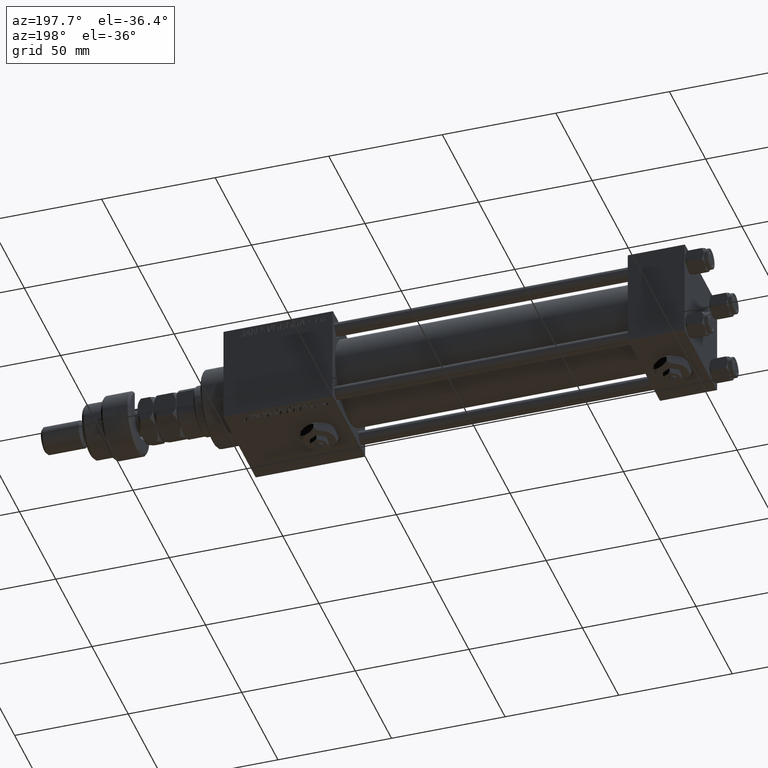
[diagram: clean part render]
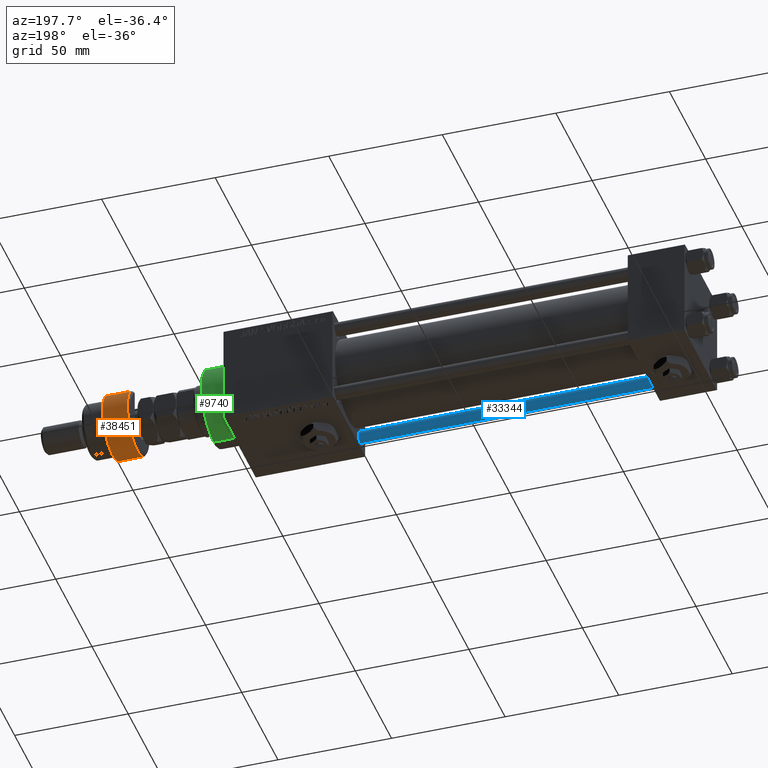
[diagram: same view with three faces highlighted in distinct colors, each labeled with its STEP entity id]
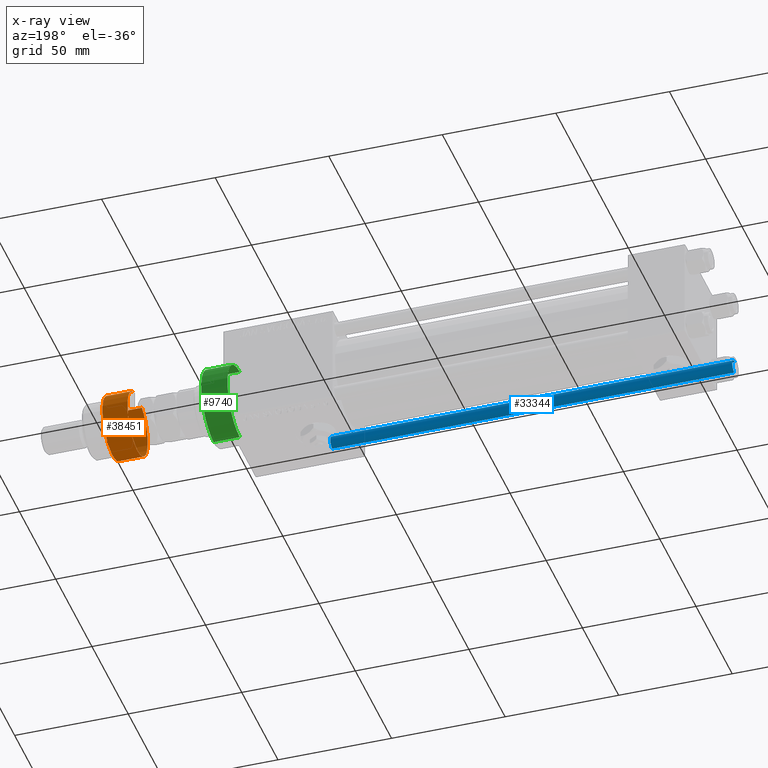
[diagram: x-ray of the same camera — body ghosted, the three highlighted faces saturated]
A machine part, auxiliary view with three faces highlighted in distinct colors.
The next image is the same camera in x-ray (body ghosted, the three faces saturated) — at least one of them is partly hidden behind the body in this view.
Their STEP definitions:

[orange] entity #38451 — the highlighted cylindrical surface (edge-blend (fillet) strip) has radius 14 mm, axis along (-1, -0, 0).
#2520 = VECTOR ( 'NONE', #7128, 1000.000000000000000 ) ;
#2724 = CARTESIAN_POINT ( 'NONE',  ( -12.64911064067351809, 6.000000000000000000, 1.000000000000021760 ) ) ;
#3640 = VERTEX_POINT ( 'NONE', #14206 ) ;
#7077 = CIRCLE ( 'NONE', #16015, 14.00000000000000000 ) ;
#7128 = DIRECTION ( 'NONE',  ( -0.000000000000000000, -0.000000000000000000, -1.000000000000000000 ) ) ;
#8043 = LINE ( 'NONE', #45714, #35758 ) ;
#8958 = EDGE_CURVE ( 'NONE', #35920, #3640, #49226, .T. ) ;
#10925 = CARTESIAN_POINT ( 'NONE',  ( -12.64911064067351809, -5.999999999999999112, 12.00000000000002842 ) ) ;
#11792 = AXIS2_PLACEMENT_3D ( 'NONE', #37243, #33610, #42250 ) ;
#12643 = DIRECTION ( 'NONE',  ( -1.000000000000000000, 0.000000000000000000, 0.000000000000000000 ) ) ;
#13092 = ORIENTED_EDGE ( 'NONE', *, *, #50314, .T. ) ;
#13327 = DIRECTION ( 'NONE',  ( 1.000000000000000000, 0.000000000000000000, 0.000000000000000000 ) ) ;
#14117 = AXIS2_PLACEMENT_3D ( 'NONE', #40092, #14712, #40377 ) ;
#14206 = CARTESIAN_POINT ( 'NONE',  ( 14.00000000000000000, 0.000000000000000000, 1.000000000000018208 ) ) ;
#14712 = DIRECTION ( 'NONE',  ( -0.000000000000000000, -0.000000000000000000, 1.000000000000000000 ) ) ;
#16015 = AXIS2_PLACEMENT_3D ( 'NONE', #30098, #47098, #13327 ) ;
#16847 = FACE_OUTER_BOUND ( 'NONE', #54822, .T. ) ;
#17730 = CIRCLE ( 'NONE', #14117, 14.00000000000000000 ) ;
#18190 = ORIENTED_EDGE ( 'NONE', *, *, #45269, .T. ) ;
#20819 = LINE ( 'NONE', #37817, #2520 ) ;
#22794 = EDGE_CURVE ( 'NONE', #55028, #25424, #20819, .T. ) ;
#23086 = ORIENTED_EDGE ( 'NONE', *, *, #22794, .F. ) ;
#23212 = ORIENTED_EDGE ( 'NONE', *, *, #8958, .T. ) ;
#25424 = VERTEX_POINT ( 'NONE', #2724 ) ;
#29673 = ORIENTED_EDGE ( 'NONE', *, *, #31537, .T. ) ;
#30098 = CARTESIAN_POINT ( 'NONE',  ( 0.000000000000000000, 0.000000000000000000, 12.00000000000002842 ) ) ;
#31537 = EDGE_CURVE ( 'NONE', #53939, #35920, #8043, .T. ) ;
#33610 = DIRECTION ( 'NONE',  ( -0.000000000000000000, -0.000000000000000000, 1.000000000000000000 ) ) ;
#33841 = CYLINDRICAL_SURFACE ( 'NONE', #40977, 14.00000000000000000 ) ;
#35758 = VECTOR ( 'NONE', #45986, 1000.000000000000000 ) ;
#35920 = VERTEX_POINT ( 'NONE', #45567 ) ;
#37243 = CARTESIAN_POINT ( 'NONE',  ( 0.000000000000000000, 0.000000000000000000, 1.000000000000018208 ) ) ;
#37817 = CARTESIAN_POINT ( 'NONE',  ( -12.64911064067351809, 6.000000000000000000, 14.50000000000000000 ) ) ;
#38451 = ADVANCED_FACE ( 'NONE', ( #16847 ), #33841, .T. ) ;
#40092 = CARTESIAN_POINT ( 'NONE',  ( 0.000000000000000000, 0.000000000000000000, 1.000000000000018208 ) ) ;
#40377 = DIRECTION ( 'NONE',  ( 1.000000000000000000, 0.000000000000000000, 0.000000000000000000 ) ) ;
#40977 = AXIS2_PLACEMENT_3D ( 'NONE', #41939, #51136, #12643 ) ;
#41939 = CARTESIAN_POINT ( 'NONE',  ( 0.000000000000000000, 0.000000000000000000, 13.00000000000000000 ) ) ;
#42250 = DIRECTION ( 'NONE',  ( 1.000000000000000000, 0.000000000000000000, 0.000000000000000000 ) ) ;
#44343 = CARTESIAN_POINT ( 'NONE',  ( -12.64911064067351809, 6.000000000000000000, 12.00000000000002842 ) ) ;
#45269 = EDGE_CURVE ( 'NONE', #3640, #25424, #17730, .T. ) ;
#45567 = CARTESIAN_POINT ( 'NONE',  ( -12.64911064067351809, -5.999999999999999112, 1.000000000000021760 ) ) ;
#45714 = CARTESIAN_POINT ( 'NONE',  ( -12.64911064067351809, -5.999999999999999112, 14.50000000000000000 ) ) ;
#45986 = DIRECTION ( 'NONE',  ( -0.000000000000000000, -0.000000000000000000, -1.000000000000000000 ) ) ;
#47098 = DIRECTION ( 'NONE',  ( 0.000000000000000000, 0.000000000000000000, -1.000000000000000000 ) ) ;
#49226 = CIRCLE ( 'NONE', #11792, 14.00000000000000000 ) ;
#50314 = EDGE_CURVE ( 'NONE', #55028, #53939, #7077, .T. ) ;
#51136 = DIRECTION ( 'NONE',  ( -0.000000000000000000, -0.000000000000000000, -1.000000000000000000 ) ) ;
#53939 = VERTEX_POINT ( 'NONE', #10925 ) ;
#54822 = EDGE_LOOP ( 'NONE', ( #23086, #13092, #29673, #23212, #18190 ) ) ;
#55028 = VERTEX_POINT ( 'NONE', #44343 ) ;

[blue] entity #33344 — the highlighted cylindrical surface (edge-blend (fillet) strip) has radius 3 mm, axis along (-1, -0, -0).
#2142 = VERTEX_POINT ( 'NONE', #46220 ) ;
#2443 = CIRCLE ( 'NONE', #51471, 3.000000000000000444 ) ;
#3945 = ORIENTED_EDGE ( 'NONE', *, *, #18112, .T. ) ;
#4645 = VERTEX_POINT ( 'NONE', #45173 ) ;
#4710 = EDGE_CURVE ( 'NONE', #2142, #4645, #43173, .T. ) ;
#6976 = ORIENTED_EDGE ( 'NONE', *, *, #4710, .F. ) ;
#7091 = DIRECTION ( 'NONE',  ( 1.000000000000000000, 0.000000000000000000, 0.000000000000000000 ) ) ;
#11001 = CARTESIAN_POINT ( 'NONE',  ( -3.000000000000000444, 0.000000000000000000, 177.5000000000000000 ) ) ;
#12797 = CARTESIAN_POINT ( 'NONE',  ( 3.000000000000000444, 3.673940397442060361E-16, 178.0000000000000000 ) ) ;
#13062 = EDGE_CURVE ( 'NONE', #49380, #39374, #13685, .T. ) ;
#13685 = LINE ( 'NONE', #30720, #38779 ) ;
#16504 = ORIENTED_EDGE ( 'NONE', *, *, #13062, .T. ) ;
#16795 = CARTESIAN_POINT ( 'NONE',  ( 0.000000000000000000, 0.000000000000000000, 178.0000000000000000 ) ) ;
#17500 = CARTESIAN_POINT ( 'NONE',  ( 0.000000000000000000, 0.000000000000000000, 0.5000000000000281997 ) ) ;
#18112 = EDGE_CURVE ( 'NONE', #2142, #49380, #2443, .T. ) ;
#23027 = AXIS2_PLACEMENT_3D ( 'NONE', #17500, #34504, #52342 ) ;
#28804 = CYLINDRICAL_SURFACE ( 'NONE', #54132, 3.000000000000000444 ) ;
#30720 = CARTESIAN_POINT ( 'NONE',  ( -3.000000000000000444, 0.000000000000000000, 178.0000000000000000 ) ) ;
#31896 = CIRCLE ( 'NONE', #23027, 3.000000000000000444 ) ;
#32362 = CARTESIAN_POINT ( 'NONE',  ( -3.000000000000000444, 0.000000000000000000, 0.5000000000000281997 ) ) ;
#33344 = ADVANCED_FACE ( 'NONE', ( #49982 ), #28804, .T. ) ;
#34504 = DIRECTION ( 'NONE',  ( -0.000000000000000000, -0.000000000000000000, 1.000000000000000000 ) ) ;
#38269 = CARTESIAN_POINT ( 'NONE',  ( 0.000000000000000000, 0.000000000000000000, 177.5000000000000000 ) ) ;
#38779 = VECTOR ( 'NONE', #47714, 1000.000000000000000 ) ;
#39374 = VERTEX_POINT ( 'NONE', #32362 ) ;
#40258 = VECTOR ( 'NONE', #54931, 1000.000000000000000 ) ;
#43173 = LINE ( 'NONE', #12797, #40258 ) ;
#45173 = CARTESIAN_POINT ( 'NONE',  ( 3.000000000000000444, 3.673940397442060361E-16, 0.5000000000000281997 ) ) ;
#45310 = DIRECTION ( 'NONE',  ( 0.000000000000000000, 0.000000000000000000, -1.000000000000000000 ) ) ;
#46220 = CARTESIAN_POINT ( 'NONE',  ( 3.000000000000000444, 3.673940397442060361E-16, 177.5000000000000000 ) ) ;
#46361 = DIRECTION ( 'NONE',  ( -1.000000000000000000, 0.000000000000000000, 0.000000000000000000 ) ) ;
#47324 = EDGE_CURVE ( 'NONE', #39374, #4645, #31896, .T. ) ;
#47714 = DIRECTION ( 'NONE',  ( -0.000000000000000000, -0.000000000000000000, -1.000000000000000000 ) ) ;
#49380 = VERTEX_POINT ( 'NONE', #11001 ) ;
#49982 = FACE_OUTER_BOUND ( 'NONE', #50639, .T. ) ;
#50639 = EDGE_LOOP ( 'NONE', ( #6976, #3945, #16504, #51370 ) ) ;
#50814 = DIRECTION ( 'NONE',  ( -0.000000000000000000, -0.000000000000000000, -1.000000000000000000 ) ) ;
#51370 = ORIENTED_EDGE ( 'NONE', *, *, #47324, .T. ) ;
#51471 = AXIS2_PLACEMENT_3D ( 'NONE', #38269, #45310, #7091 ) ;
#52342 = DIRECTION ( 'NONE',  ( 1.000000000000000000, 0.000000000000000000, 0.000000000000000000 ) ) ;
#54132 = AXIS2_PLACEMENT_3D ( 'NONE', #16795, #50814, #46361 ) ;
#54931 = DIRECTION ( 'NONE',  ( -0.000000000000000000, -0.000000000000000000, -1.000000000000000000 ) ) ;

[green] entity #9740 — the highlighted cylindrical surface (partial cylindrical patch) has radius 17 mm, axis along (-1, -0, -0).
#465 = AXIS2_PLACEMENT_3D ( 'NONE', #15834, #8013, #33673 ) ;
#2928 = AXIS2_PLACEMENT_3D ( 'NONE', #28703, #45700, #29535 ) ;
#5226 = ORIENTED_EDGE ( 'NONE', *, *, #19905, .T. ) ;
#5238 = CARTESIAN_POINT ( 'NONE',  ( -17.00000000000000000, 0.000000000000000000, 40.70000000000000284 ) ) ;
#6643 = DIRECTION ( 'NONE',  ( 1.000000000000000000, 0.000000000000000000, 0.000000000000000000 ) ) ;
#7941 = VERTEX_POINT ( 'NONE', #8259 ) ;
#8013 = DIRECTION ( 'NONE',  ( 0.000000000000000000, 0.000000000000000000, 1.000000000000000000 ) ) ;
#8259 = CARTESIAN_POINT ( 'NONE',  ( -17.00000000000000000, 0.000000000000000000, 28.69999999999999929 ) ) ;
#9740 = ADVANCED_FACE ( 'NONE', ( #41787 ), #15854, .T. ) ;
#10475 = ORIENTED_EDGE ( 'NONE', *, *, #52320, .F. ) ;
#11098 = CARTESIAN_POINT ( 'NONE',  ( 0.000000000000000000, 0.000000000000000000, 40.19999999999999574 ) ) ;
#13555 = EDGE_CURVE ( 'NONE', #42832, #7941, #28114, .T. ) ;
#15834 = CARTESIAN_POINT ( 'NONE',  ( 0.000000000000000000, 0.000000000000000000, 28.69999999999999929 ) ) ;
#15846 = ORIENTED_EDGE ( 'NONE', *, *, #13555, .T. ) ;
#15854 = CYLINDRICAL_SURFACE ( 'NONE', #2928, 17.00000000000000000 ) ;
#18421 = CARTESIAN_POINT ( 'NONE',  ( -17.00000000000000000, 0.000000000000000000, 40.19999999999999574 ) ) ;
#19905 = EDGE_CURVE ( 'NONE', #38835, #42832, #39570, .T. ) ;
#24718 = AXIS2_PLACEMENT_3D ( 'NONE', #11098, #53512, #6643 ) ;
#25319 = CARTESIAN_POINT ( 'NONE',  ( 17.00000000000000000, 2.081899558550500280E-15, 28.69999999999999929 ) ) ;
#26491 = DIRECTION ( 'NONE',  ( -0.000000000000000000, -0.000000000000000000, -1.000000000000000000 ) ) ;
#28114 = CIRCLE ( 'NONE', #465, 17.00000000000000000 ) ;
#28264 = VECTOR ( 'NONE', #26491, 1000.000000000000000 ) ;
#28354 = CARTESIAN_POINT ( 'NONE',  ( 17.00000000000000000, 2.081899558550500280E-15, 40.70000000000000284 ) ) ;
#28703 = CARTESIAN_POINT ( 'NONE',  ( 0.000000000000000000, 0.000000000000000000, 40.70000000000000284 ) ) ;
#29535 = DIRECTION ( 'NONE',  ( -1.000000000000000000, 0.000000000000000000, 0.000000000000000000 ) ) ;
#30437 = CARTESIAN_POINT ( 'NONE',  ( 17.00000000000000000, 2.081899558550500280E-15, 40.19999999999999574 ) ) ;
#33673 = DIRECTION ( 'NONE',  ( 1.000000000000000000, 0.000000000000000000, 0.000000000000000000 ) ) ;
#34486 = CIRCLE ( 'NONE', #24718, 17.00000000000000000 ) ;
#35913 = LINE ( 'NONE', #5238, #43663 ) ;
#38835 = VERTEX_POINT ( 'NONE', #30437 ) ;
#39265 = DIRECTION ( 'NONE',  ( -0.000000000000000000, -0.000000000000000000, -1.000000000000000000 ) ) ;
#39570 = LINE ( 'NONE', #28354, #28264 ) ;
#41004 = EDGE_LOOP ( 'NONE', ( #50648, #5226, #15846, #10475 ) ) ;
#41226 = EDGE_CURVE ( 'NONE', #42253, #38835, #34486, .T. ) ;
#41787 = FACE_OUTER_BOUND ( 'NONE', #41004, .T. ) ;
#42253 = VERTEX_POINT ( 'NONE', #18421 ) ;
#42832 = VERTEX_POINT ( 'NONE', #25319 ) ;
#43663 = VECTOR ( 'NONE', #39265, 1000.000000000000000 ) ;
#45700 = DIRECTION ( 'NONE',  ( -0.000000000000000000, -0.000000000000000000, -1.000000000000000000 ) ) ;
#50648 = ORIENTED_EDGE ( 'NONE', *, *, #41226, .T. ) ;
#52320 = EDGE_CURVE ( 'NONE', #42253, #7941, #35913, .T. ) ;
#53512 = DIRECTION ( 'NONE',  ( 0.000000000000000000, 0.000000000000000000, -1.000000000000000000 ) ) ;